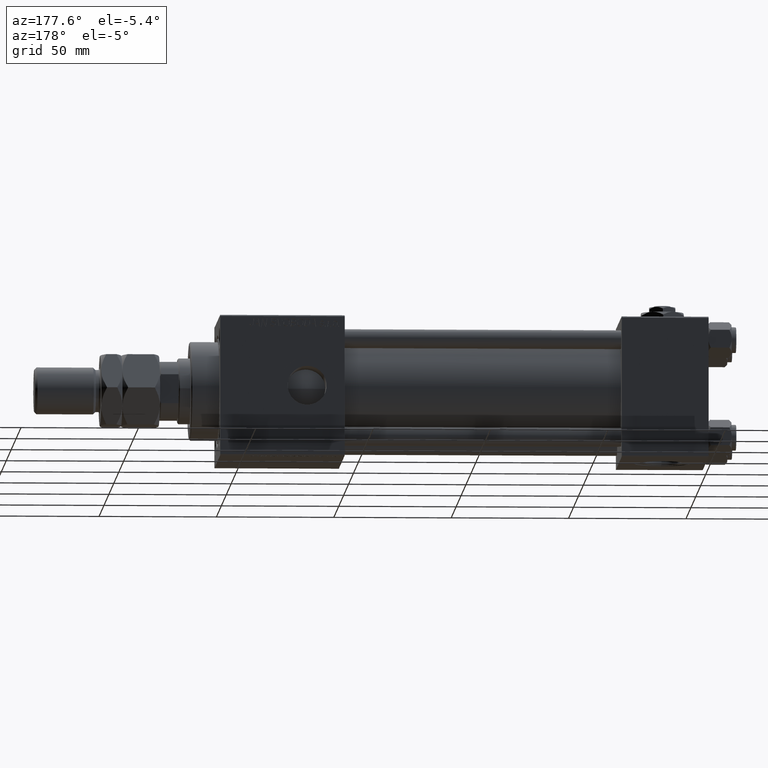
[diagram: clean part render]
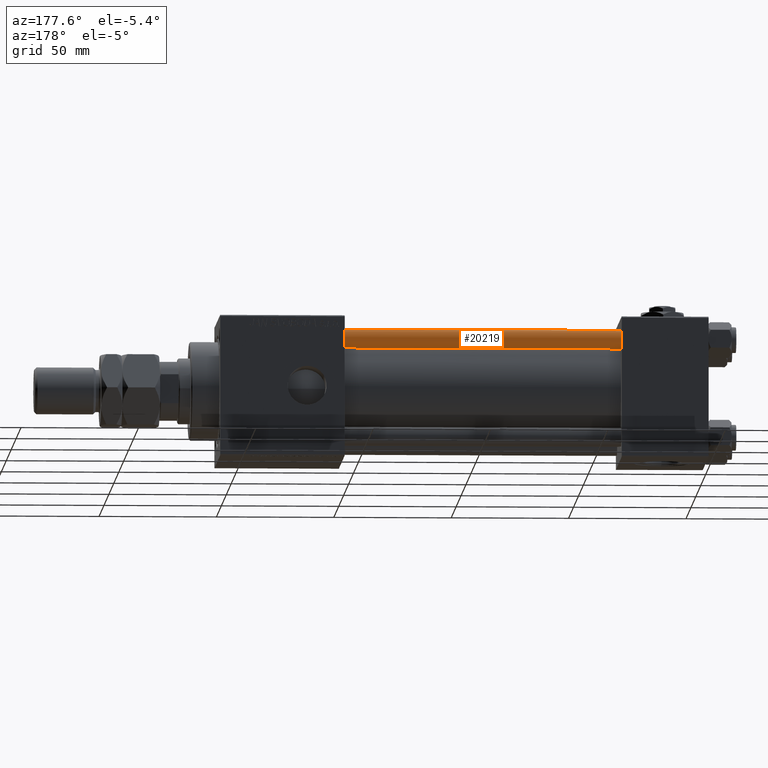
[diagram: same view with one face highlighted and labeled with its STEP entity id]
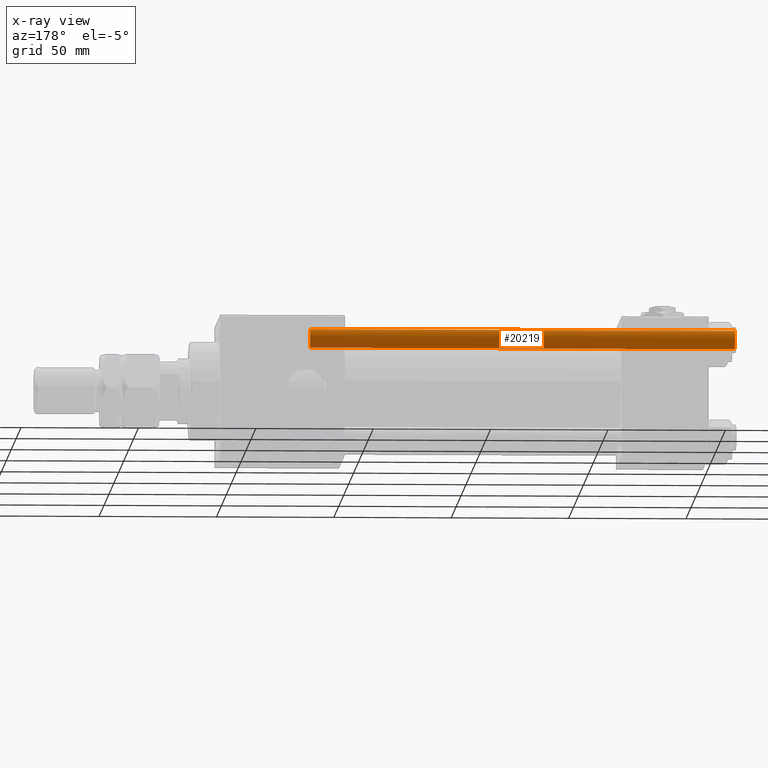
[diagram: x-ray of the same camera — body ghosted, the highlighted face saturated]
A machine part, auxiliary view. The second image highlights one B-rep face of the part: STEP entity #20219.
The next image is the same camera in x-ray: the body ghosted, the highlighted face saturated — about 0% of this face is hidden behind the body in this view.
In plain terms, the highlighted cylindrical surface (edge-blend (fillet) strip) has radius 4 mm, axis along (-1, 0, 0).
Its self-contained STEP definition (entity closure, byte-faithful):
#164 = CARTESIAN_POINT ( 'NONE',  ( -4.000000000000000000, 0.000000000000000000, 182.0000000000000000 ) ) ;
#750 = VERTEX_POINT ( 'NONE', #37746 ) ;
#1290 = CARTESIAN_POINT ( 'NONE',  ( 4.000000000000000000, 4.898587196589412829E-16, 0.4999999999999726885 ) ) ;
#2543 = VECTOR ( 'NONE', #16498, 1000.000000000000000 ) ;
#3279 = DIRECTION ( 'NONE',  ( -0.000000000000000000, -0.000000000000000000, -1.000000000000000000 ) ) ;
#5439 = DIRECTION ( 'NONE',  ( -1.000000000000000000, 0.000000000000000000, 0.000000000000000000 ) ) ;
#6211 = DIRECTION ( 'NONE',  ( 1.000000000000000000, 0.000000000000000000, 0.000000000000000000 ) ) ;
#7628 = LINE ( 'NONE', #40541, #27140 ) ;
#8703 = CYLINDRICAL_SURFACE ( 'NONE', #52249, 4.000000000000000000 ) ;
#10446 = CARTESIAN_POINT ( 'NONE',  ( -4.000000000000000000, 0.000000000000000000, 181.5000000000000284 ) ) ;
#12007 = EDGE_CURVE ( 'NONE', #47857, #29766, #52826, .T. ) ;
#15240 = EDGE_CURVE ( 'NONE', #47857, #750, #25199, .T. ) ;
#16498 = DIRECTION ( 'NONE',  ( -0.000000000000000000, -0.000000000000000000, -1.000000000000000000 ) ) ;
#19699 = DIRECTION ( 'NONE',  ( -0.000000000000000000, -0.000000000000000000, 1.000000000000000000 ) ) ;
#19811 = AXIS2_PLACEMENT_3D ( 'NONE', #40377, #19699, #45275 ) ;
#20219 = ADVANCED_FACE ( 'NONE', ( #30189 ), #8703, .T. ) ;
#20604 = VERTEX_POINT ( 'NONE', #1290 ) ;
#25199 = LINE ( 'NONE', #164, #2543 ) ;
#26882 = CARTESIAN_POINT ( 'NONE',  ( 0.000000000000000000, 0.000000000000000000, 181.5000000000000284 ) ) ;
#27140 = VECTOR ( 'NONE', #3279, 1000.000000000000000 ) ;
#29363 = CIRCLE ( 'NONE', #19811, 4.000000000000000000 ) ;
#29766 = VERTEX_POINT ( 'NONE', #34885 ) ;
#30189 = FACE_OUTER_BOUND ( 'NONE', #51338, .T. ) ;
#30907 = ORIENTED_EDGE ( 'NONE', *, *, #12007, .T. ) ;
#31808 = EDGE_CURVE ( 'NONE', #20604, #750, #29363, .T. ) ;
#34885 = CARTESIAN_POINT ( 'NONE',  ( 4.000000000000000000, 4.898587196589412829E-16, 181.5000000000000284 ) ) ;
#37746 = CARTESIAN_POINT ( 'NONE',  ( -4.000000000000000000, 0.000000000000000000, 0.4999999999999726885 ) ) ;
#39658 = ORIENTED_EDGE ( 'NONE', *, *, #31808, .T. ) ;
#40377 = CARTESIAN_POINT ( 'NONE',  ( 0.000000000000000000, 0.000000000000000000, 0.4999999999999726885 ) ) ;
#40541 = CARTESIAN_POINT ( 'NONE',  ( 4.000000000000000000, 4.898587196589412829E-16, 182.0000000000000000 ) ) ;
#41623 = CARTESIAN_POINT ( 'NONE',  ( 0.000000000000000000, 0.000000000000000000, 182.0000000000000000 ) ) ;
#41965 = ORIENTED_EDGE ( 'NONE', *, *, #51726, .T. ) ;
#42718 = DIRECTION ( 'NONE',  ( -0.000000000000000000, -0.000000000000000000, -1.000000000000000000 ) ) ;
#43495 = DIRECTION ( 'NONE',  ( 0.000000000000000000, 0.000000000000000000, -1.000000000000000000 ) ) ;
#45275 = DIRECTION ( 'NONE',  ( 1.000000000000000000, 0.000000000000000000, 0.000000000000000000 ) ) ;
#47857 = VERTEX_POINT ( 'NONE', #10446 ) ;
#51338 = EDGE_LOOP ( 'NONE', ( #30907, #41965, #39658, #53192 ) ) ;
#51726 = EDGE_CURVE ( 'NONE', #29766, #20604, #7628, .T. ) ;
#51976 = AXIS2_PLACEMENT_3D ( 'NONE', #26882, #43495, #6211 ) ;
#52249 = AXIS2_PLACEMENT_3D ( 'NONE', #41623, #42718, #5439 ) ;
#52826 = CIRCLE ( 'NONE', #51976, 4.000000000000000000 ) ;
#53192 = ORIENTED_EDGE ( 'NONE', *, *, #15240, .F. ) ;